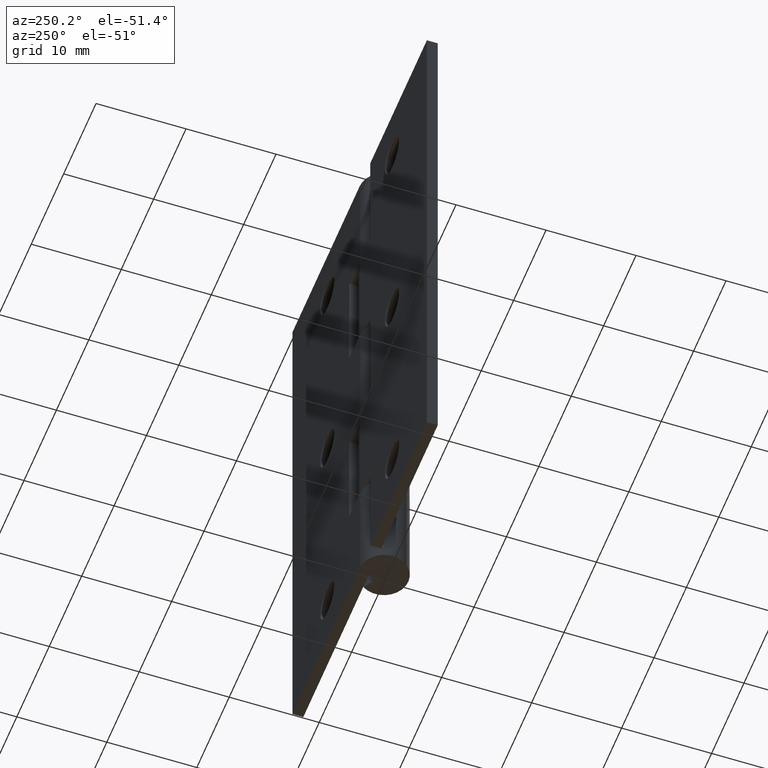
[diagram: clean part render]
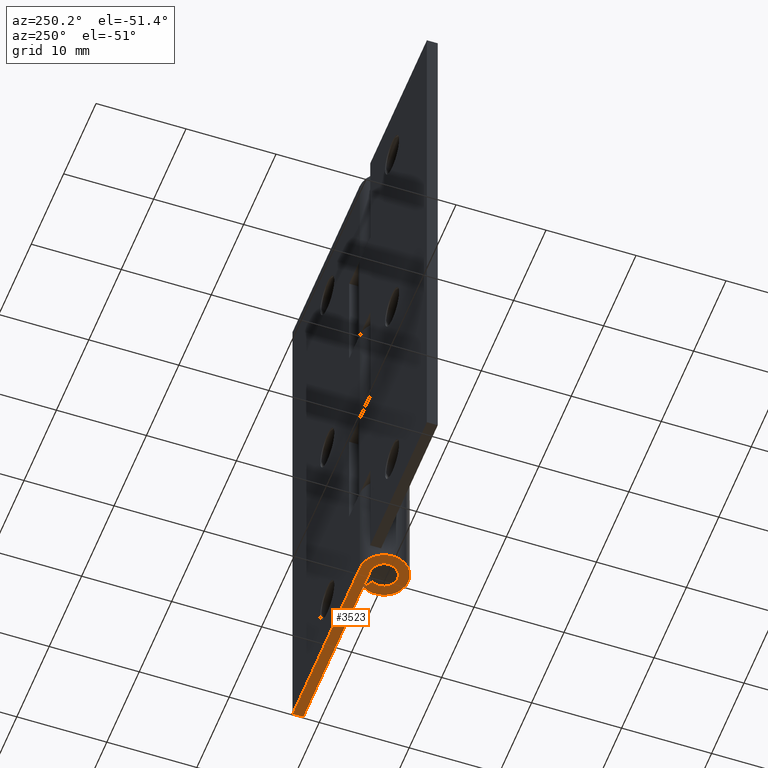
[diagram: same view with one face highlighted and labeled with its STEP entity id]
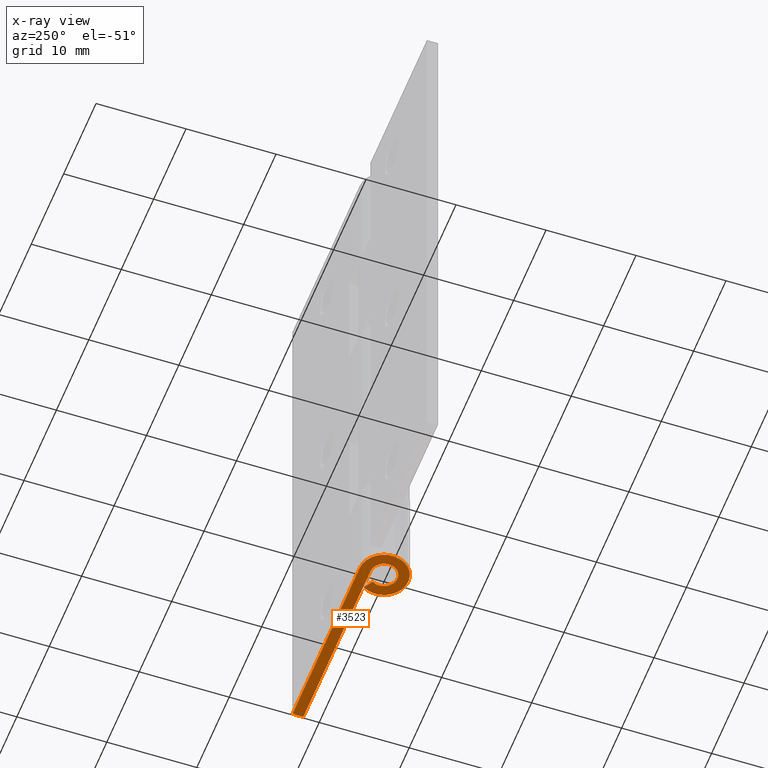
[diagram: x-ray of the same camera — body ghosted, the highlighted face saturated]
A machine part, auxiliary view. The second image highlights one B-rep face of the part: STEP entity #3523.
The next image is the same camera in x-ray: the body ghosted, the highlighted face saturated — about 0% of this face is hidden behind the body in this view.
In plain terms, the highlighted face is a freeform B-spline surface patch.
Its self-contained STEP definition (entity closure, byte-faithful):
#3446=CARTESIAN_POINT('',(-3.871088339275239,-2.968772830180692,0.0));
#3447=CARTESIAN_POINT('',(21.921316707924792,-2.968772830180692,0.0));
#3448=CARTESIAN_POINT('',(-3.871088339275239,2.969685646317828,0.0));
#3449=CARTESIAN_POINT('',(21.921316707924792,2.969685646317828,0.0));
#3450=B_SPLINE_SURFACE_WITH_KNOTS('',1,1,((#3446,#3448),(#3447,#3449)),.UNSPECIFIED.,.F.,.F.,.U.,(2,2),(2,2),(0.0,25.792405047200031),(0.0,5.938458476498520),.UNSPECIFIED.);
#3451=CARTESIAN_POINT('',(-2.755364E-016,1.500000000000000,0.0));
#3452=VERTEX_POINT('',#3451);
#3453=CARTESIAN_POINT('',(20.750000000000000,1.500000000000000,0.0));
#3454=VERTEX_POINT('',#3453);
#3455=CARTESIAN_POINT('',(-2.755364E-016,1.500000000000000,0.0));
#3456=CARTESIAN_POINT('',(20.750000000000000,1.500000000000000,0.0));
#3457=QUASI_UNIFORM_CURVE('',1,(#3455,#3456),.UNSPECIFIED.,.F.,.U.);
#3458=EDGE_CURVE('',#3452,#3454,#3457,.T.);
#3459=ORIENTED_EDGE('',*,*,#3458,.F.);
#3460=CARTESIAN_POINT('',(1.265337997103376,0.805555555555552,0.0));
#3461=VERTEX_POINT('',#3460);
#3462=CARTESIAN_POINT('',(1.265337997103377,0.805555555555553,0.0));
#3463=CARTESIAN_POINT('',(1.890422249647681,-0.176304541715821,0.0));
#3464=CARTESIAN_POINT('',(1.094556678899885,-1.025644030195493,0.0));
#3465=CARTESIAN_POINT('',(0.298691108152089,-1.874983518675165,0.0));
#3466=CARTESIAN_POINT('',(-0.721687836487034,-1.314977819838291,0.0));
#3467=CARTESIAN_POINT('',(-1.742066781126156,-0.754972121001417,0.0));
#3468=CARTESIAN_POINT('',(-1.453008384311226,0.372513939499290,0.0));
#3469=CARTESIAN_POINT('',(-1.163949987496296,1.500000000000000,0.0));
#3470=CARTESIAN_POINT('',(0.0,1.500000000000000,0.0));
#3478=(BOUNDED_CURVE()B_SPLINE_CURVE(2,(#3462,#3463,#3464,#3465,#3466,#3467,#3468,#3469,#3470),.UNSPECIFIED.,.F.,.U.)B_SPLINE_CURVE_WITH_KNOTS((3,2,2,2,3),(0.0,0.250000000000000,0.500000000000000,0.750000000000000,1.0),.UNSPECIFIED.)CURVE()GEOMETRIC_REPRESENTATION_ITEM()RATIONAL_B_SPLINE_CURVE((1.0,0.790045133626194,1.0,0.790045133626194,1.0,0.790045133626194,1.0,0.790045133626194,1.0))REPRESENTATION_ITEM(''));
#3479=EDGE_CURVE('',#3461,#3452,#3478,.T.);
#3480=ORIENTED_EDGE('',*,*,#3479,.F.);
#3481=CARTESIAN_POINT('',(2.277608394786080,1.450000000000000,0.0));
#3482=VERTEX_POINT('',#3481);
#3483=CARTESIAN_POINT('',(2.277608394786080,1.450000000000000,0.0));
#3484=CARTESIAN_POINT('',(1.265337997103376,0.805555555555552,0.0));
#3485=QUASI_UNIFORM_CURVE('',1,(#3483,#3484),.UNSPECIFIED.,.F.,.U.);
#3486=EDGE_CURVE('',#3482,#3461,#3485,.T.);
#3487=ORIENTED_EDGE('',*,*,#3486,.F.);
#3488=CARTESIAN_POINT('',(0.0,2.700001000000000,0.0));
#3489=VERTEX_POINT('',#3488);
#3490=CARTESIAN_POINT('',(2.277608394786080,1.450000000000000,0.0));
#3491=CARTESIAN_POINT('',(3.402760049365833,-0.317348882027743,0.0));
#3492=CARTESIAN_POINT('',(1.970202022019799,-1.846159761025622,0.0));
#3493=CARTESIAN_POINT('',(0.537643994673765,-3.374970640023501,0.0));
#3494=CARTESIAN_POINT('',(-1.299038105676659,-2.366959575708922,0.0));
#3495=CARTESIAN_POINT('',(-3.135720206027081,-1.358948511394346,0.0));
#3496=CARTESIAN_POINT('',(-2.615415091760209,0.670526597772459,0.0));
#3497=CARTESIAN_POINT('',(-2.095109977493337,2.700001706939268,0.0));
#3498=CARTESIAN_POINT('',(0.0,2.700001000000000,0.0));
#3506=(BOUNDED_CURVE()B_SPLINE_CURVE(2,(#3490,#3491,#3492,#3493,#3494,#3495,#3496,#3497,#3498),.UNSPECIFIED.,.F.,.U.)B_SPLINE_CURVE_WITH_KNOTS((3,2,2,2,3),(0.0,0.250000000000000,0.500000000000000,0.750000000000000,1.0),.UNSPECIFIED.)CURVE()GEOMETRIC_REPRESENTATION_ITEM()RATIONAL_B_SPLINE_CURVE((1.0,0.790045133626194,1.0,0.790045133626194,1.0,0.790045133626194,1.0,0.790045133626194,1.0))REPRESENTATION_ITEM(''));
#3507=EDGE_CURVE('',#3482,#3489,#3506,.T.);
#3508=ORIENTED_EDGE('',*,*,#3507,.T.);
#3509=CARTESIAN_POINT('',(20.750000000000000,2.700001000000000,0.0));
#3510=VERTEX_POINT('',#3509);
#3511=CARTESIAN_POINT('',(20.750000000000000,2.700001000000000,0.0));
#3512=CARTESIAN_POINT('',(0.0,2.700001000000000,0.0));
#3513=QUASI_UNIFORM_CURVE('',1,(#3511,#3512),.UNSPECIFIED.,.F.,.U.);
#3514=EDGE_CURVE('',#3510,#3489,#3513,.T.);
#3515=ORIENTED_EDGE('',*,*,#3514,.F.);
#3516=CARTESIAN_POINT('',(20.750000000000000,1.500000000000000,0.0));
#3517=CARTESIAN_POINT('',(20.750000000000000,2.700001000000000,0.0));
#3518=QUASI_UNIFORM_CURVE('',1,(#3516,#3517),.UNSPECIFIED.,.F.,.U.);
#3519=EDGE_CURVE('',#3454,#3510,#3518,.T.);
#3520=ORIENTED_EDGE('',*,*,#3519,.F.);
#3521=EDGE_LOOP('',(#3459,#3480,#3487,#3508,#3515,#3520));
#3522=FACE_OUTER_BOUND('',#3521,.T.);
#3523=ADVANCED_FACE('',(#3522),#3450,.F.);